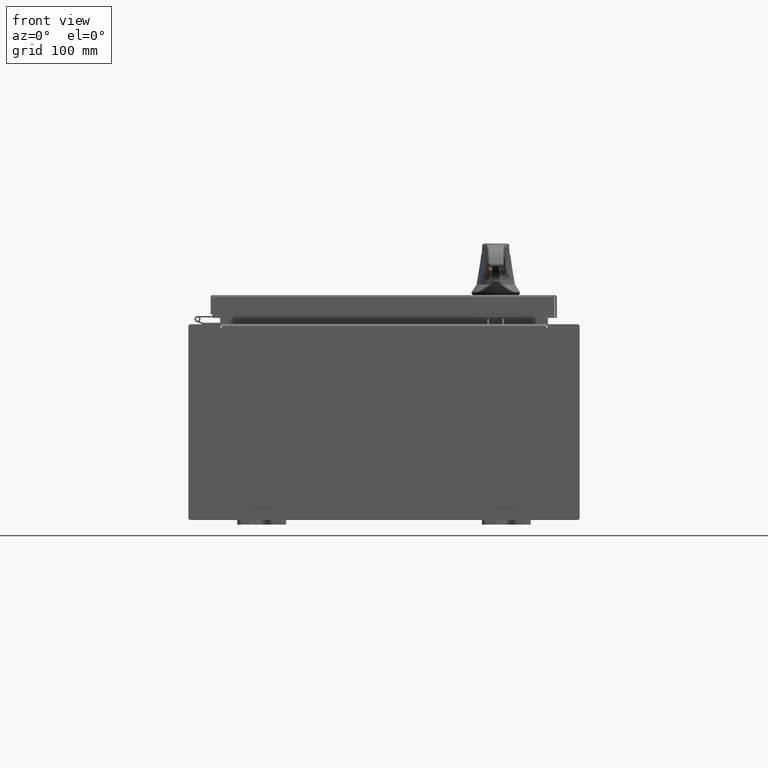
[diagram: clean part render]
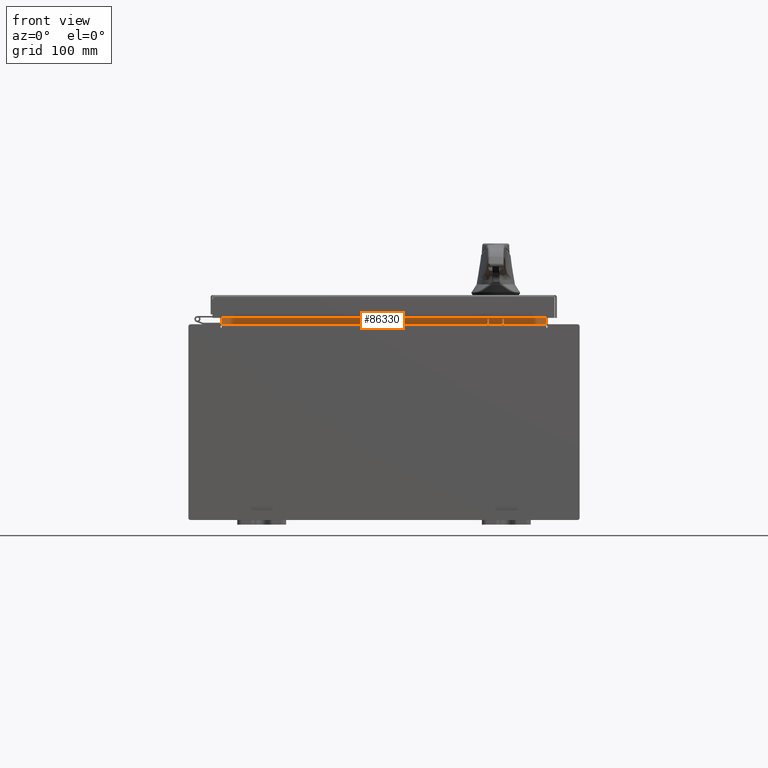
[diagram: same view with one face highlighted and labeled with its STEP entity id]
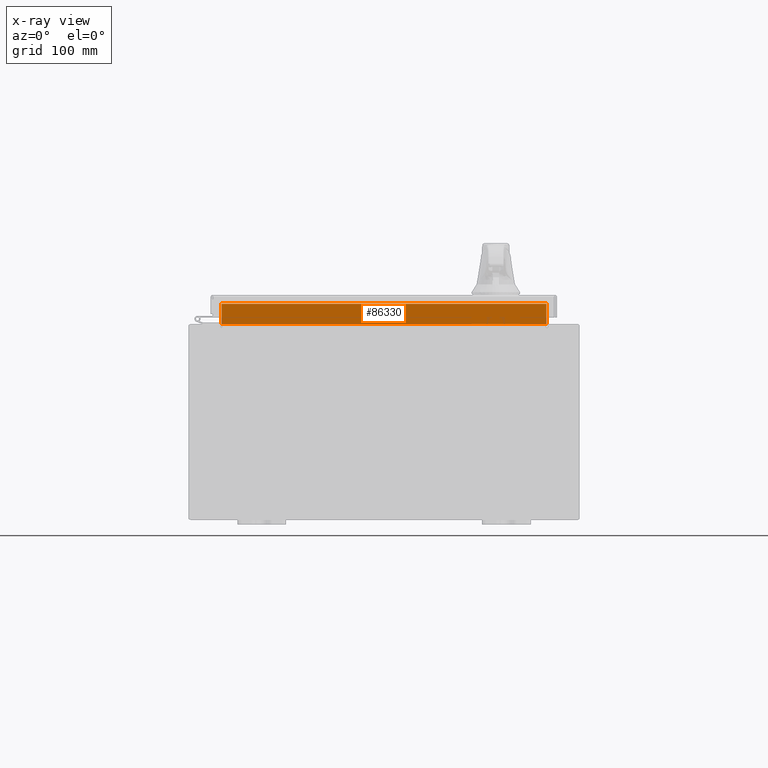
[diagram: x-ray of the same camera — body ghosted, the highlighted face saturated]
A machine part, front view. The second image highlights one B-rep face of the part: STEP entity #86330.
The next image is the same camera in x-ray: the body ghosted, the highlighted face saturated — about 0% of this face is hidden behind the body in this view.
In plain terms, the highlighted planar face has unit normal (0, -1, 0).
Its self-contained STEP definition (entity closure, byte-faithful):
#1066 = VERTEX_POINT ( 'NONE', #88871 ) ;
#3024 = PLANE ( 'NONE',  #94963 ) ;
#3464 = VECTOR ( 'NONE', #40726, 39.37007874015748100 ) ;
#4589 = CARTESIAN_POINT ( 'NONE',  ( -6.637200000000000000, -1.300299999999999800, 4.000000000000003600 ) ) ;
#7996 = VECTOR ( 'NONE', #13060, 39.37007874015748100 ) ;
#12354 = ORIENTED_EDGE ( 'NONE', *, *, #24798, .F. ) ;
#13060 = DIRECTION ( 'NONE',  ( -0.0000000000000000000, -0.0000000000000000000, -1.000000000000000000 ) ) ;
#16368 = LINE ( 'NONE', #87797, #41462 ) ;
#18258 = EDGE_CURVE ( 'NONE', #75798, #1066, #30452, .T. ) ;
#19992 = DIRECTION ( 'NONE',  ( 0.0000000000000000000, 1.000000000000000000, 0.0000000000000000000 ) ) ;
#24798 = EDGE_CURVE ( 'NONE', #1066, #69588, #70782, .T. ) ;
#30452 = LINE ( 'NONE', #4589, #7996 ) ;
#30732 = DIRECTION ( 'NONE',  ( -0.0000000000000000000, -0.0000000000000000000, 1.000000000000000000 ) ) ;
#35781 = ORIENTED_EDGE ( 'NONE', *, *, #90216, .F. ) ;
#37611 = CARTESIAN_POINT ( 'NONE',  ( 6.637200000000000900, -1.300299999999999800, 4.013000000000003500 ) ) ;
#40726 = DIRECTION ( 'NONE',  ( 1.000000000000000000, 0.0000000000000000000, -4.115964553824298400E-017 ) ) ;
#41462 = VECTOR ( 'NONE', #95871, 39.37007874015748100 ) ;
#52487 = FACE_OUTER_BOUND ( 'NONE', #74219, .T. ) ;
#60418 = ORIENTED_EDGE ( 'NONE', *, *, #18258, .F. ) ;
#62050 = CARTESIAN_POINT ( 'NONE',  ( 0.0000000000000000000, -1.300299999999999800, 0.0000000000000000000 ) ) ;
#62532 = CARTESIAN_POINT ( 'NONE',  ( 6.637200000000000000, -1.300299999999999800, 4.837600000000003700 ) ) ;
#66578 = VERTEX_POINT ( 'NONE', #62532 ) ;
#69588 = VERTEX_POINT ( 'NONE', #37611 ) ;
#70782 = LINE ( 'NONE', #72438, #3464 ) ;
#71889 = CARTESIAN_POINT ( 'NONE',  ( -6.637200000000000000, -1.300299999999999800, 4.837600000000003700 ) ) ;
#72438 = CARTESIAN_POINT ( 'NONE',  ( -6.637200000000000000, -1.300299999999999800, 4.013000000000003500 ) ) ;
#74219 = EDGE_LOOP ( 'NONE', ( #60418, #35781, #109213, #12354 ) ) ;
#75798 = VERTEX_POINT ( 'NONE', #71889 ) ;
#78947 = DIRECTION ( 'NONE',  ( 0.0000000000000000000, -0.0000000000000000000, 1.000000000000000000 ) ) ;
#79480 = EDGE_CURVE ( 'NONE', #69588, #66578, #94468, .T. ) ;
#86330 = ADVANCED_FACE ( 'NONE', ( #52487 ), #3024, .T. ) ;
#87797 = CARTESIAN_POINT ( 'NONE',  ( 6.637200000000000000, -1.300299999999999800, 4.837600000000003700 ) ) ;
#88871 = CARTESIAN_POINT ( 'NONE',  ( -6.637199999999999100, -1.300299999999999800, 4.013000000000003500 ) ) ;
#89719 = CARTESIAN_POINT ( 'NONE',  ( 6.637200000000000000, -1.300299999999999800, 4.925300000000004500 ) ) ;
#90216 = EDGE_CURVE ( 'NONE', #66578, #75798, #16368, .T. ) ;
#91842 = VECTOR ( 'NONE', #30732, 39.37007874015748100 ) ;
#94468 = LINE ( 'NONE', #89719, #91842 ) ;
#94963 = AXIS2_PLACEMENT_3D ( 'NONE', #62050, #19992, #78947 ) ;
#95871 = DIRECTION ( 'NONE',  ( -1.000000000000000000, -0.0000000000000000000, -0.0000000000000000000 ) ) ;
#109213 = ORIENTED_EDGE ( 'NONE', *, *, #79480, .F. ) ;